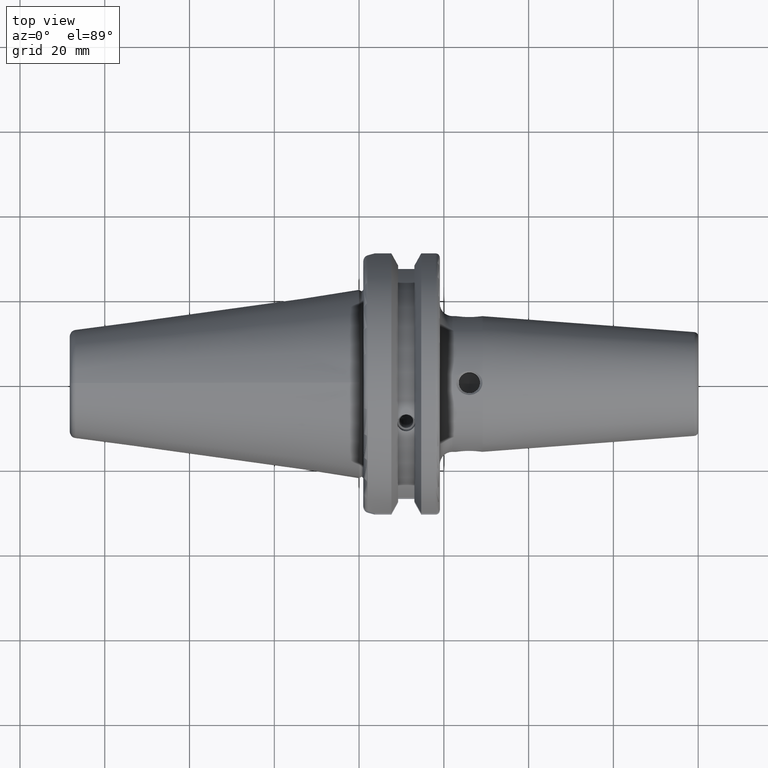
[diagram: clean part render]
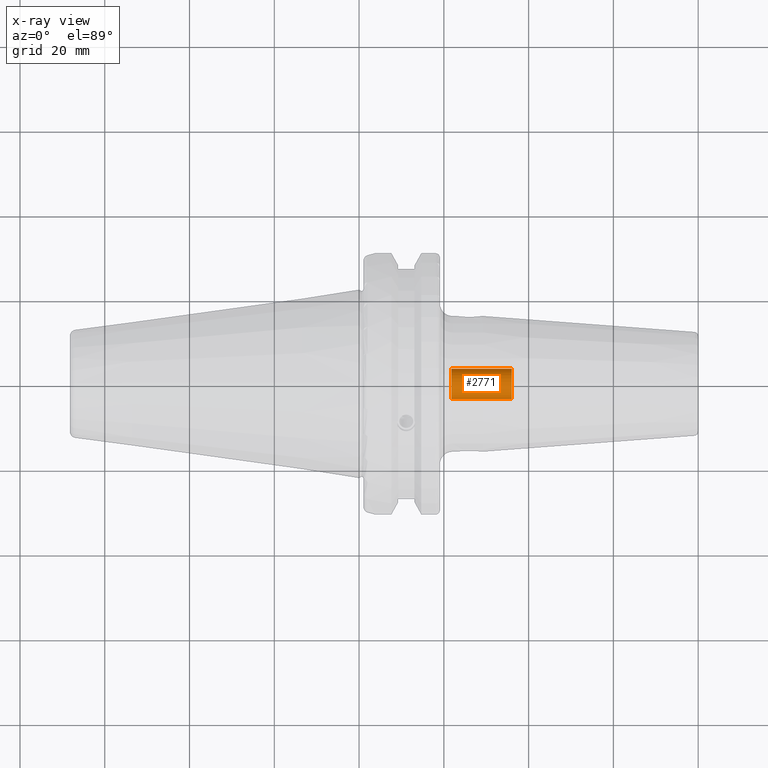
[diagram: x-ray — body ghosted, one internal face saturated and labeled with its STEP entity id]
A machine part, top view, then the same camera in x-ray: the body is ghosted and one INTERNAL B-rep face — a face not visible from any outside direction — is saturated and labeled: STEP entity #2771.
In plain terms, the highlighted cylindrical surface (edge-blend (fillet) strip) has radius 3.556 mm, axis along (1, 0, 0).
Its self-contained STEP definition (entity closure, byte-faithful):
#208=CARTESIAN_POINT('',(8.562309614752E-1,0.E0,0.E0));
#209=DIRECTION('',(1.E0,0.E0,0.E0));
#210=DIRECTION('',(0.E0,1.E0,0.E0));
#211=AXIS2_PLACEMENT_3D('',#208,#209,#210);
#221=DIRECTION('',(1.E0,0.E0,0.E0));
#222=VECTOR('',#221,5.622690385248E-1);
#223=CARTESIAN_POINT('',(8.562309614752E-1,-1.4E-1,0.E0));
#224=LINE('',#223,#222);
#225=DIRECTION('',(1.E0,0.E0,0.E0));
#226=VECTOR('',#225,5.622690385248E-1);
#227=CARTESIAN_POINT('',(8.562309614752E-1,1.4E-1,0.E0));
#228=LINE('',#227,#226);
#2109=CARTESIAN_POINT('',(1.4185E0,0.E0,0.E0));
#2110=DIRECTION('',(-1.E0,0.E0,0.E0));
#2111=DIRECTION('',(0.E0,-1.E0,0.E0));
#2112=AXIS2_PLACEMENT_3D('',#2109,#2110,#2111);
#2408=CARTESIAN_POINT('',(1.4185E0,-1.4E-1,0.E0));
#2409=CARTESIAN_POINT('',(1.4185E0,1.4E-1,0.E0));
#2410=VERTEX_POINT('',#2408);
#2411=VERTEX_POINT('',#2409);
#2416=CARTESIAN_POINT('',(8.562309614752E-1,-1.4E-1,0.E0));
#2417=VERTEX_POINT('',#2416);
#2418=CARTESIAN_POINT('',(8.562309614752E-1,1.4E-1,0.E0));
#2419=VERTEX_POINT('',#2418);
#2757=CARTESIAN_POINT('',(-3.506135E0,0.E0,0.E0));
#2758=DIRECTION('',(1.E0,0.E0,0.E0));
#2759=DIRECTION('',(0.E0,-1.E0,0.E0));
#2760=AXIS2_PLACEMENT_3D('',#2757,#2758,#2759);
#2761=CYLINDRICAL_SURFACE('',#2760,1.4E-1);
#2763=ORIENTED_EDGE('',*,*,#2762,.T.);
#2765=ORIENTED_EDGE('',*,*,#2764,.T.);
#2767=ORIENTED_EDGE('',*,*,#2766,.F.);
#2768=ORIENTED_EDGE('',*,*,#2747,.T.);
#2769=EDGE_LOOP('',(#2763,#2765,#2767,#2768));
#2770=FACE_OUTER_BOUND('',#2769,.F.);
#2771=ADVANCED_FACE('',(#2770),#2761,.F.);
#212=CIRCLE('',#211,1.4E-1);
#2113=CIRCLE('',#2112,1.4E-1);
#2747=EDGE_CURVE('',#2419,#2417,#212,.T.);
#2762=EDGE_CURVE('',#2417,#2410,#224,.T.);
#2764=EDGE_CURVE('',#2410,#2411,#2113,.T.);
#2766=EDGE_CURVE('',#2419,#2411,#228,.T.);